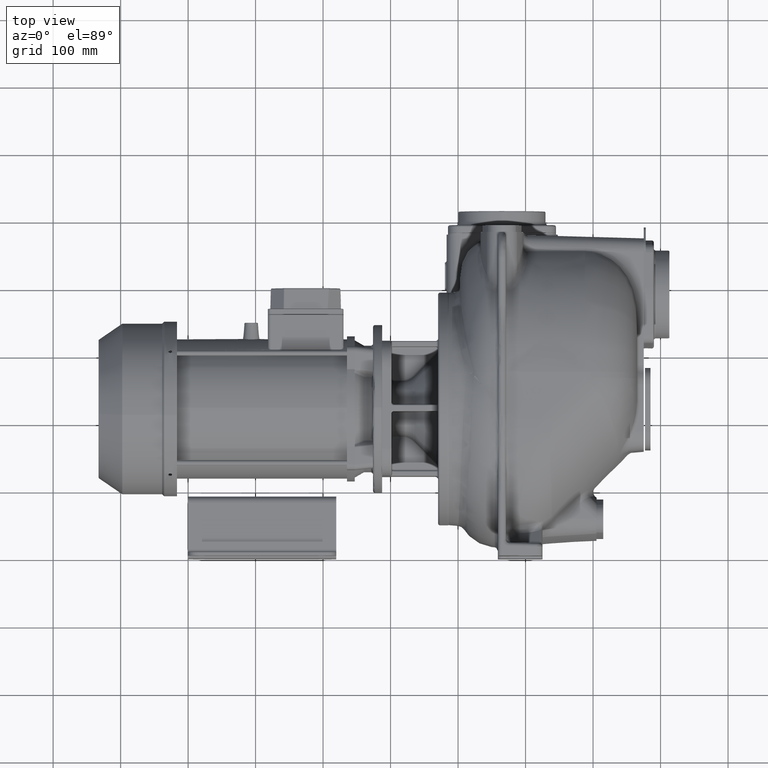
[diagram: clean part render]
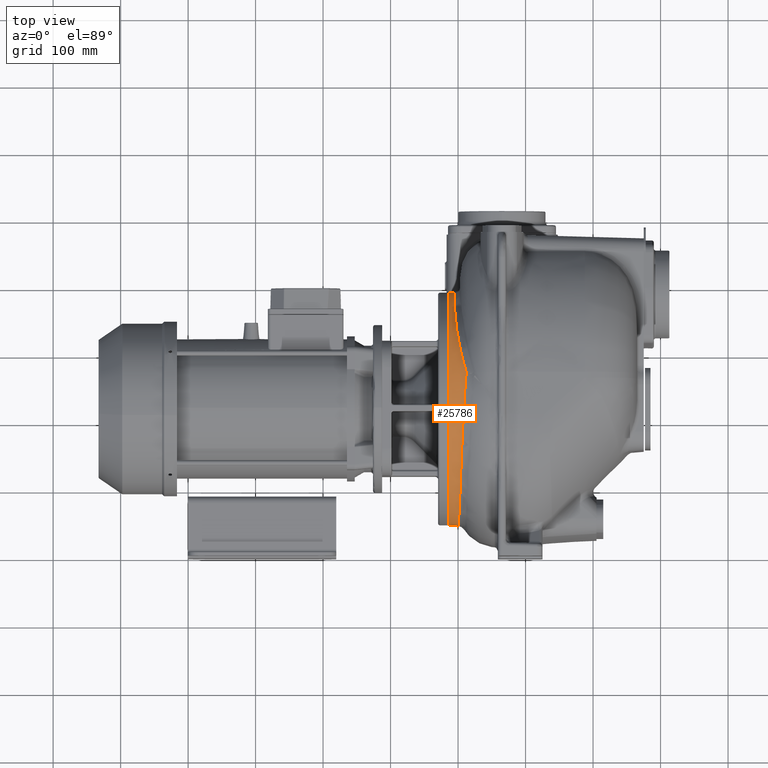
[diagram: same view with one face highlighted and labeled with its STEP entity id]
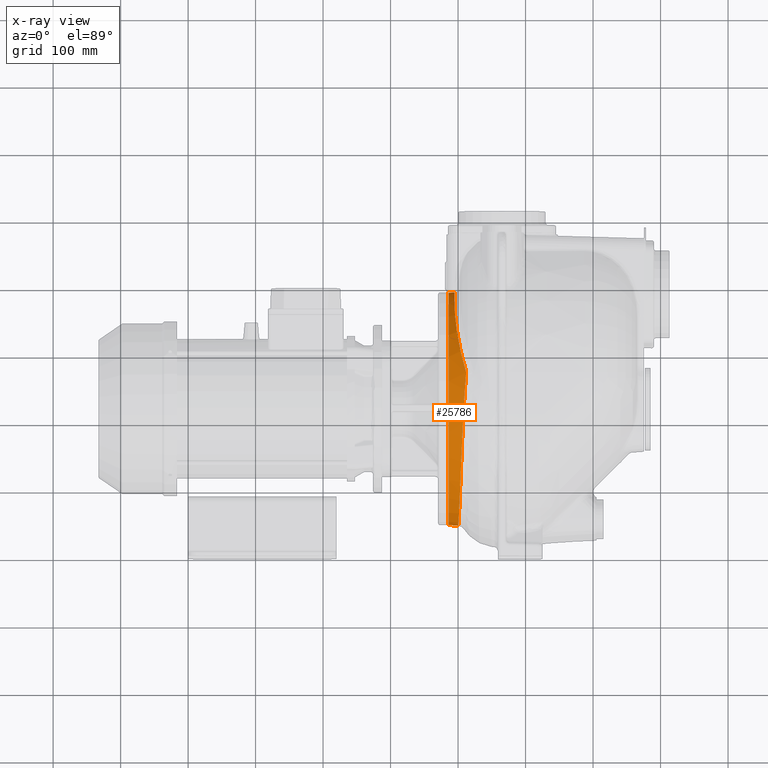
[diagram: x-ray of the same camera — body ghosted, the highlighted face saturated]
A machine part, top view. The second image highlights one B-rep face of the part: STEP entity #25786.
The next image is the same camera in x-ray: the body ghosted, the highlighted face saturated — about 0% of this face is hidden behind the body in this view.
In plain terms, the highlighted conical surface has half-angle 5 deg.
Its self-contained STEP definition (entity closure, byte-faithful):
#3146=CARTESIAN_POINT('',(-1.139841720526E2,2.2E2,-1.9E1));
#3147=DIRECTION('',(1.E0,0.E0,0.E0));
#3148=DIRECTION('',(0.E0,9.132932221912E-1,-4.073027010708E-1));
#3149=AXIS2_PLACEMENT_3D('',#3146,#3147,#3148);
#3151=CARTESIAN_POINT('',(-1.139841720701E2,3.771676017642E2,
-8.909226289281E1));
#3152=CARTESIAN_POINT('',(-1.134588797708E2,3.774502932905E2,
-8.857121794893E1));
#3153=CARTESIAN_POINT('',(-1.124188440122E2,3.779802771030E2,
-8.759138854623E1));
#3154=CARTESIAN_POINT('',(-1.109298379707E2,3.786805728926E2,
-8.628850987586E1));
#3155=CARTESIAN_POINT('',(-1.095209236912E2,3.793064923827E2,
-8.511429526799E1));
#3156=CARTESIAN_POINT('',(-1.082052415457E2,3.798720328187E2,
-8.404022460869E1));
#3157=CARTESIAN_POINT('',(-1.069952137808E2,3.803911231247E2,
-8.303510196996E1));
#3158=CARTESIAN_POINT('',(-1.059162665376E2,3.808785217133E2,
-8.205953072112E1));
#3159=CARTESIAN_POINT('',(-1.053294810218E2,3.811917794121E2,
-8.139490401608E1));
#3160=CARTESIAN_POINT('',(-1.051070824914E2,3.813503078791E2,
-8.103680767335E1));
#3162=CARTESIAN_POINT('',(-8.804120187526E1,2.713170246944E2,1.476357908619E2));
#3163=CARTESIAN_POINT('',(-9.010333600670E1,2.781365353615E2,1.453470210440E2));
#3164=CARTESIAN_POINT('',(-9.381822738284E1,2.916194556278E2,1.399280909831E2));
#3165=CARTESIAN_POINT('',(-9.811287759512E1,3.111827576191E2,1.291473872589E2));
#3166=CARTESIAN_POINT('',(-1.013084500054E2,3.293263983288E2,1.159562826460E2));
#3167=CARTESIAN_POINT('',(-1.035043440377E2,3.457383720177E2,1.005416149173E2));
#3168=CARTESIAN_POINT('',(-1.048125437489E2,3.601221746392E2,8.311698816505E1));
#3169=CARTESIAN_POINT('',(-1.053222114312E2,3.722281630779E2,6.391437608985E1));
#3170=CARTESIAN_POINT('',(-1.052537296471E2,3.786102672737E2,5.012713730149E1));
#3171=CARTESIAN_POINT('',(-1.051070824914E2,3.813490270958E2,4.304013873241E1));
#3173=CARTESIAN_POINT('',(-9.156037445127E1,2.2E2,1.550507015128E2));
#3174=CARTESIAN_POINT('',(-9.141067308981E1,2.226330995874E2,1.550638607984E2));
#3175=CARTESIAN_POINT('',(-9.110366457890E1,2.279008685875E2,1.549711003171E2));
#3176=CARTESIAN_POINT('',(-9.061915540074E1,2.357913002408E2,1.544756211673E2));
#3177=CARTESIAN_POINT('',(-9.010959807855E1,2.436537910707E2,1.536244404634E2));
#3178=CARTESIAN_POINT('',(-8.957340522787E1,2.514754544462E2,1.524187320827E2));
#3179=CARTESIAN_POINT('',(-8.900818885776E1,2.592434446223E2,1.508596629263E2));
#3180=CARTESIAN_POINT('',(-8.849086676212E1,2.658497363720E2,1.492211174617E2));
#3181=CARTESIAN_POINT('',(-8.816399295155E1,2.698580865037E2,1.480738289328E2));
#3182=CARTESIAN_POINT('',(-8.804120187526E1,2.713170246944E2,1.476357908619E2));
#3184=CARTESIAN_POINT('',(-1.035169552040E2,2.197770629252E2,
-1.920044925871E2));
#3185=CARTESIAN_POINT('',(-1.034495958533E2,2.111567679526E2,
-1.919992337077E2));
#3186=CARTESIAN_POINT('',(-1.033094702142E2,1.939142627105E2,
-1.906982694846E2));
#3187=CARTESIAN_POINT('',(-1.030832133444E2,1.686258866412E2,
-1.849166999659E2));
#3188=CARTESIAN_POINT('',(-1.028405505116E2,1.444774799807E2,
-1.754333806676E2));
#3189=CARTESIAN_POINT('',(-1.025792118948E2,1.220073214741E2,
-1.624589151791E2));
#3190=CARTESIAN_POINT('',(-1.022976015986E2,1.017162519424E2,
-1.462815077925E2));
#3191=CARTESIAN_POINT('',(-1.019934362993E2,8.405651690398E1,
-1.272602935308E2));
#3192=CARTESIAN_POINT('',(-1.016627669953E2,6.942251121847E1,
-1.058184166318E2));
#3193=CARTESIAN_POINT('',(-1.013024561741E2,5.814111512614E1,
-8.243286346254E1));
#3194=CARTESIAN_POINT('',(-1.009092928509E2,5.046441075466E1,
-5.762302155251E1));
#3195=CARTESIAN_POINT('',(-1.004788574862E2,4.656492426088E1,
-3.194088056223E1));
#3196=CARTESIAN_POINT('',(-1.000109374722E2,4.653121958299E1,
-5.959938092496E0));
#3197=CARTESIAN_POINT('',(-9.950499745149E1,5.036526745444E1,1.974269502324E1));
#3198=CARTESIAN_POINT('',(-9.895305113379E1,5.798377309378E1,4.459700715726E1));
#3199=CARTESIAN_POINT('',(-9.834790807612E1,6.921928389062E1,6.804905128229E1));
#3200=CARTESIAN_POINT('',(-9.768101191018E1,8.382459566593E1,8.957752419457E1));
#3201=CARTESIAN_POINT('',(-9.694266782524E1,1.014786766401E2,1.087033588360E2));
#3202=CARTESIAN_POINT('',(-9.612003184280E1,1.217904502584E2,1.249985271901E2));
#3203=CARTESIAN_POINT('',(-9.519737047580E1,1.443130191409E2,1.381001530750E2));
#3204=CARTESIAN_POINT('',(-9.415475817540E1,1.685475252789E2,1.477145509801E2));
#3205=CARTESIAN_POINT('',(-9.296984644160E1,1.939684138331E2,1.536262723500E2));
#3206=CARTESIAN_POINT('',(-9.204991244626E1,2.113186330197E2,1.550078724879E2));
#3207=CARTESIAN_POINT('',(-9.156037445127E1,2.2E2,1.550507015128E2));
#3209=CARTESIAN_POINT('',(-1.035187748260E2,2.200028481280E2,
-1.920044770227E2));
#3210=CARTESIAN_POINT('',(-1.035185966859E2,2.199774575794E2,
-1.920044930259E2));
#3211=CARTESIAN_POINT('',(-1.035182267018E2,2.199269310272E2,
-1.920045151967E2));
#3212=CARTESIAN_POINT('',(-1.035177788772E2,2.198508733524E2,
-1.920045052069E2));
#3213=CARTESIAN_POINT('',(-1.035172552350E2,2.198020526765E2,
-1.920044986670E2));
#3214=CARTESIAN_POINT('',(-1.035169552040E2,2.197770629252E2,
-1.920044925871E2));
#3216=CARTESIAN_POINT('',(-1.051088772559E2,2.982780504809E2,
-1.731265060868E2));
#3217=CARTESIAN_POINT('',(-1.051983031996E2,2.922820063601E2,
-1.761631624184E2));
#3218=CARTESIAN_POINT('',(-1.052134656309E2,2.798758975806E2,
-1.815882540805E2));
#3219=CARTESIAN_POINT('',(-1.045870450009E2,2.600162259235E2,
-1.876459163129E2));
#3220=CARTESIAN_POINT('',(-1.037857478190E2,2.397033958697E2,
-1.912528174407E2));
#3221=CARTESIAN_POINT('',(-1.035779734294E2,2.265044868477E2,
-1.919991907812E2));
#3222=CARTESIAN_POINT('',(-1.035187748260E2,2.200028481280E2,
-1.920044770227E2));
#3224=CARTESIAN_POINT('',(-1.051070824914E2,2.2E2,-1.9E1));
#3225=DIRECTION('',(-1.E0,0.E0,0.E0));
#3226=DIRECTION('',(0.E0,4.883810682493E-1,-8.726304671369E-1));
#3227=AXIS2_PLACEMENT_3D('',#3224,#3225,#3226);
#3229=DIRECTION('',(9.909546087131E-1,-4.702919424746E-2,-1.256869856380E-1));
#3230=VECTOR('',#3229,9.467247482298E-1);
#3231=CARTESIAN_POINT('',(-1.060458461213E2,3.044663421946E2,
-1.697300247225E2));
#3232=LINE('',#3231,#3230);
#3233=CARTESIAN_POINT('',(-1.060458461213E2,3.044663421946E2,
-1.697300247225E2));
#3234=CARTESIAN_POINT('',(-1.070272815744E2,3.050074594635E2,
-1.693283600352E2));
#3235=CARTESIAN_POINT('',(-1.089379408317E2,3.060764906502E2,
-1.685289170383E2));
#3236=CARTESIAN_POINT('',(-1.116131782359E2,3.077118006626E2,
-1.673039659343E2));
#3237=CARTESIAN_POINT('',(-1.132238795454E2,3.088323620465E2,
-1.664679481225E2));
#3238=CARTESIAN_POINT('',(-1.139841741564E2,3.094047685967E2,
-1.660420624663E2));
#3240=CARTESIAN_POINT('',(-1.139841720526E2,2.2E2,-1.9E1));
#3241=DIRECTION('',(1.E0,0.E0,0.E0));
#3242=DIRECTION('',(0.E0,-1.E0,-1.821477017275E-13));
#3243=AXIS2_PLACEMENT_3D('',#3240,#3241,#3242);
#3245=CARTESIAN_POINT('',(-1.139841720526E2,2.2E2,-1.9E1));
#3246=DIRECTION('',(1.E0,0.E0,0.E0));
#3247=DIRECTION('',(0.E0,1.E0,1.822509249519E-13));
#3248=AXIS2_PLACEMENT_3D('',#3245,#3246,#3247);
#3297=CARTESIAN_POINT('',(-1.060458461213E2,3.044663421946E2,
-1.697300247225E2));
#3759=CARTESIAN_POINT('',(-1.051076848689E2,3.044218184925E2,
-1.698490157024E2));
#11785=CARTESIAN_POINT('',(-1.051070824914E2,3.813503078791E2,
-8.103680767335E1));
#11797=CARTESIAN_POINT('',(-1.051070824913E2,2.2E2,-1.9E1));
#11798=DIRECTION('',(1.E0,0.E0,0.E0));
#11799=DIRECTION('',(0.E0,9.333865217132E-1,-3.588726808830E-1));
#11800=AXIS2_PLACEMENT_3D('',#11797,#11798,#11799);
#11875=CARTESIAN_POINT('',(-8.804120187526E1,2.713170246944E2,
1.476357908619E2));
#18496=VERTEX_POINT('',#3184);
#18497=VERTEX_POINT('',#3207);
#18499=VERTEX_POINT('',#3209);
#18501=VERTEX_POINT('',#3216);
#18503=CARTESIAN_POINT('',(-1.051070824913E2,3.813490336205E2,
4.304012176246E1));
#18504=VERTEX_POINT('',#18503);
#18515=VERTEX_POINT('',#11875);
#18526=VERTEX_POINT('',#3759);
#18924=VERTEX_POINT('',#11785);
#18934=VERTEX_POINT('',#3297);
#20305=CARTESIAN_POINT('',(-1.139841720526E2,3.771676017177E2,
-8.909226297206E1));
#20306=CARTESIAN_POINT('',(-1.139841720526E2,3.920888734295E2,
-1.899999999997E1));
#20307=VERTEX_POINT('',#20305);
#20308=VERTEX_POINT('',#20306);
#20309=CARTESIAN_POINT('',(-1.139841720526E2,4.791112657051E1,
-1.900000000003E1));
#20310=CARTESIAN_POINT('',(-1.139841720526E2,3.094047769649E2,
-1.660420559367E2));
#20311=VERTEX_POINT('',#20309);
#20312=VERTEX_POINT('',#20310);
#25754=CARTESIAN_POINT('',(-1.010118563989E2,2.2E2,-1.9E1));
#25755=DIRECTION('',(1.E0,0.E0,0.E0));
#25756=DIRECTION('',(0.E0,0.E0,-1.E0));
#25757=AXIS2_PLACEMENT_3D('',#25754,#25755,#25756);
#25758=CONICAL_SURFACE('',#25757,1.732238039889E2,5.E0);
#25760=ORIENTED_EDGE('',*,*,#25759,.F.);
#25762=ORIENTED_EDGE('',*,*,#25761,.T.);
#25764=ORIENTED_EDGE('',*,*,#25763,.T.);
#25766=ORIENTED_EDGE('',*,*,#25765,.F.);
#25768=ORIENTED_EDGE('',*,*,#25767,.F.);
#25770=ORIENTED_EDGE('',*,*,#25769,.F.);
#25772=ORIENTED_EDGE('',*,*,#25771,.F.);
#25774=ORIENTED_EDGE('',*,*,#25773,.F.);
#25776=ORIENTED_EDGE('',*,*,#25775,.F.);
#25778=ORIENTED_EDGE('',*,*,#25777,.F.);
#25780=ORIENTED_EDGE('',*,*,#25779,.T.);
#25782=ORIENTED_EDGE('',*,*,#25781,.F.);
#25783=ORIENTED_EDGE('',*,*,#25744,.F.);
#25784=EDGE_LOOP('',(#25760,#25762,#25764,#25766,#25768,#25770,#25772,#25774,
#25776,#25778,#25780,#25782,#25783));
#25785=FACE_OUTER_BOUND('',#25784,.F.);
#25786=ADVANCED_FACE('',(#25785),#25758,.T.);
#3150=CIRCLE('',#3149,1.720888734295E2);
#3161=B_SPLINE_CURVE_WITH_KNOTS('',3,(#3151,#3152,#3153,#3154,#3155,#3156,#3157,
#3158,#3159,#3160),.UNSPECIFIED.,.F.,.F.,(4,1,1,1,1,1,1,4),(0.E0,
1.428571428571E-1,2.857142857143E-1,4.285714285714E-1,5.714285714286E-1,
7.142857142857E-1,8.571428571429E-1,1.E0),.UNSPECIFIED.);
#3172=B_SPLINE_CURVE_WITH_KNOTS('',3,(#3162,#3163,#3164,#3165,#3166,#3167,#3168,
#3169,#3170,#3171),.UNSPECIFIED.,.F.,.F.,(4,1,1,1,1,1,1,4),(0.E0,
1.428571428571E-1,2.857142857143E-1,4.285714285714E-1,5.714285714286E-1,
7.142857142857E-1,8.571428571429E-1,1.E0),.UNSPECIFIED.);
#3183=B_SPLINE_CURVE_WITH_KNOTS('',3,(#3173,#3174,#3175,#3176,#3177,#3178,#3179,
#3180,#3181,#3182),.UNSPECIFIED.,.F.,.F.,(4,1,1,1,1,1,1,4),(0.E0,
1.519012616783E-1,3.037989844677E-1,4.557833722591E-1,6.078162313051E-1,
7.599590618785E-1,9.122336937339E-1,1.E0),.UNSPECIFIED.);
#3208=B_SPLINE_CURVE_WITH_KNOTS('',3,(#3184,#3185,#3186,#3187,#3188,#3189,#3190,
#3191,#3192,#3193,#3194,#3195,#3196,#3197,#3198,#3199,#3200,#3201,#3202,#3203,
#3204,#3205,#3206,#3207),.UNSPECIFIED.,.F.,.F.,(4,1,1,1,1,1,1,1,1,1,1,1,1,1,1,1,
1,1,1,1,1,4),(0.E0,4.761904761905E-2,9.523809523810E-2,1.428571428571E-1,
1.904761904762E-1,2.380952380952E-1,2.857142857143E-1,3.333333333333E-1,
3.809523809524E-1,4.285714285714E-1,4.761904761905E-1,5.238095238095E-1,
5.714285714286E-1,6.190476190476E-1,6.666666666667E-1,7.142857142857E-1,
7.619047619048E-1,8.095238095238E-1,8.571428571429E-1,9.047619047619E-1,
9.523809523810E-1,1.E0),.UNSPECIFIED.);
#3215=B_SPLINE_CURVE_WITH_KNOTS('',3,(#3209,#3210,#3211,#3212,#3213,#3214),
.UNSPECIFIED.,.F.,.F.,(4,1,1,4),(0.E0,3.333333333333E-1,6.666666666667E-1,1.E0),
.UNSPECIFIED.);
#3223=B_SPLINE_CURVE_WITH_KNOTS('',3,(#3216,#3217,#3218,#3219,#3220,#3221,
#3222),.UNSPECIFIED.,.F.,.F.,(4,1,1,1,4),(0.E0,2.5E-1,5.E-1,7.5E-1,1.E0),
.UNSPECIFIED.);
#3228=CIRCLE('',#3227,1.728655181312E2);
#3239=B_SPLINE_CURVE_WITH_KNOTS('',3,(#3233,#3234,#3235,#3236,#3237,#3238),
.UNSPECIFIED.,.F.,.F.,(4,1,1,4),(0.E0,3.333333333333E-1,6.666666666667E-1,1.E0),
.UNSPECIFIED.);
#3244=CIRCLE('',#3243,1.720888734295E2);
#3249=CIRCLE('',#3248,1.720888734295E2);
#11801=CIRCLE('',#11800,1.728655181306E2);
#25744=EDGE_CURVE('',#20308,#20311,#3249,.T.);
#25759=EDGE_CURVE('',#20307,#20308,#3150,.T.);
#25761=EDGE_CURVE('',#20307,#18924,#3161,.T.);
#25763=EDGE_CURVE('',#18924,#18504,#11801,.T.);
#25765=EDGE_CURVE('',#18515,#18504,#3172,.T.);
#25767=EDGE_CURVE('',#18497,#18515,#3183,.T.);
#25769=EDGE_CURVE('',#18496,#18497,#3208,.T.);
#25771=EDGE_CURVE('',#18499,#18496,#3215,.T.);
#25773=EDGE_CURVE('',#18501,#18499,#3223,.T.);
#25775=EDGE_CURVE('',#18526,#18501,#3228,.T.);
#25777=EDGE_CURVE('',#18934,#18526,#3232,.T.);
#25779=EDGE_CURVE('',#18934,#20312,#3239,.T.);
#25781=EDGE_CURVE('',#20311,#20312,#3244,.T.);